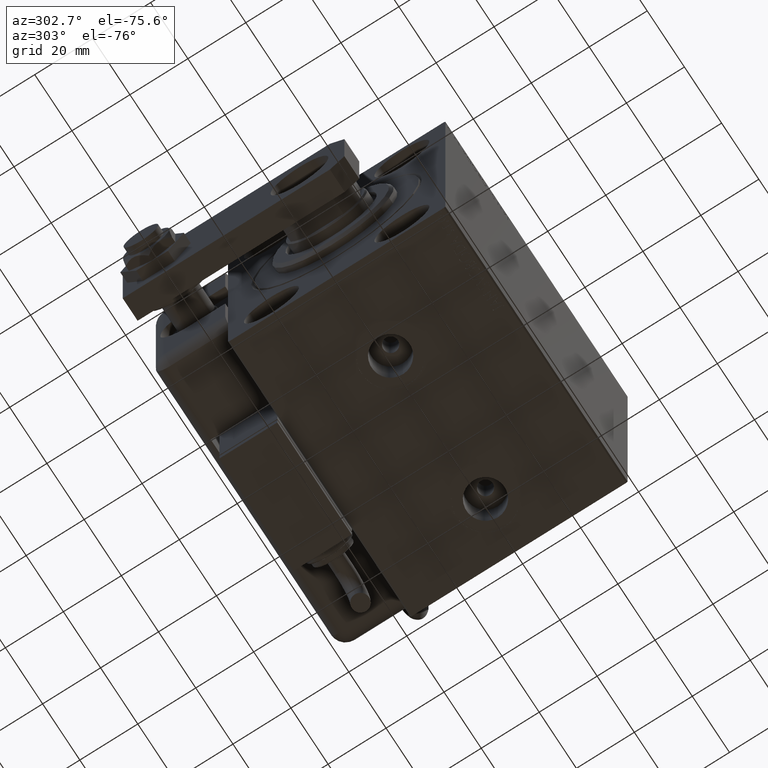
[diagram: clean part render]
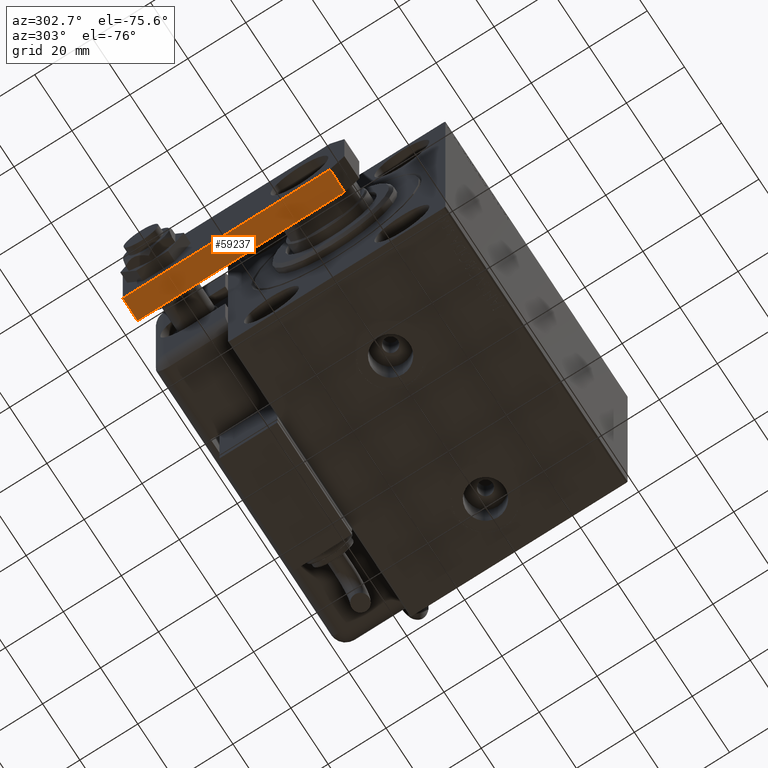
[diagram: same view with one face highlighted and labeled with its STEP entity id]
A machine part, auxiliary view. The second image highlights one B-rep face of the part: STEP entity #59237.
In plain terms, the highlighted planar face has unit normal (0, -0, 1).
Its self-contained STEP definition (entity closure, byte-faithful):
#6174 = EDGE_CURVE ( 'NONE', #54972, #6866, #26038, .T. ) ;
#6866 = VERTEX_POINT ( 'NONE', #21196 ) ;
#7568 = DIRECTION ( 'NONE',  ( -6.802837160693361638E-17, 1.000000000000000000, 0.000000000000000000 ) ) ;
#7772 = FACE_OUTER_BOUND ( 'NONE', #9344, .T. ) ;
#8980 = ORIENTED_EDGE ( 'NONE', *, *, #23380, .F. ) ;
#9344 = EDGE_LOOP ( 'NONE', ( #21934, #56663, #10870, #8980 ) ) ;
#9704 = CARTESIAN_POINT ( 'NONE',  ( 15.00000000000000888, 5.000000000000004441, 8.000000000000000000 ) ) ;
#10504 = DIRECTION ( 'NONE',  ( -0.000000000000000000, -0.000000000000000000, -1.000000000000000000 ) ) ;
#10870 = ORIENTED_EDGE ( 'NONE', *, *, #6174, .T. ) ;
#15678 = EDGE_CURVE ( 'NONE', #20735, #54972, #18786, .T. ) ;
#16178 = DIRECTION ( 'NONE',  ( -6.802837160693361638E-17, 1.000000000000000000, 0.000000000000000000 ) ) ;
#18786 = LINE ( 'NONE', #9704, #50796 ) ;
#20735 = VERTEX_POINT ( 'NONE', #29837 ) ;
#21196 = CARTESIAN_POINT ( 'NONE',  ( 15.00000000000000355, 76.50000000000000000, 0.000000000000000000 ) ) ;
#21712 = DIRECTION ( 'NONE',  ( -1.000000000000000000, -6.802837160693362871E-17, 0.000000000000000000 ) ) ;
#21934 = ORIENTED_EDGE ( 'NONE', *, *, #52612, .F. ) ;
#23380 = EDGE_CURVE ( 'NONE', #44431, #6866, #46817, .T. ) ;
#25019 = AXIS2_PLACEMENT_3D ( 'NONE', #44718, #21712, #35606 ) ;
#26038 = LINE ( 'NONE', #49937, #52449 ) ;
#26238 = PLANE ( 'NONE',  #25019 ) ;
#28756 = DIRECTION ( 'NONE',  ( 0.000000000000000000, 0.000000000000000000, -1.000000000000000000 ) ) ;
#29837 = CARTESIAN_POINT ( 'NONE',  ( 15.00000000000000888, 5.000000000000004441, 8.000000000000000000 ) ) ;
#35576 = VECTOR ( 'NONE', #16178, 1000.000000000000000 ) ;
#35606 = DIRECTION ( 'NONE',  ( 6.802837160693362871E-17, -1.000000000000000000, 0.000000000000000000 ) ) ;
#40073 = CARTESIAN_POINT ( 'NONE',  ( 15.00000000000000888, 9.629649721936179265E-32, 8.000000000000000000 ) ) ;
#43168 = CARTESIAN_POINT ( 'NONE',  ( 15.00000000000000355, 76.50000000000000000, 8.000000000000000000 ) ) ;
#44030 = LINE ( 'NONE', #40073, #35576 ) ;
#44431 = VERTEX_POINT ( 'NONE', #43168 ) ;
#44718 = CARTESIAN_POINT ( 'NONE',  ( 15.00000000000000888, 9.629649721936179265E-32, 8.000000000000000000 ) ) ;
#46817 = LINE ( 'NONE', #51070, #58823 ) ;
#49937 = CARTESIAN_POINT ( 'NONE',  ( 15.00000000000000888, 9.629649721936179265E-32, 0.000000000000000000 ) ) ;
#50244 = CARTESIAN_POINT ( 'NONE',  ( 15.00000000000000888, 5.000000000000004441, 0.000000000000000000 ) ) ;
#50796 = VECTOR ( 'NONE', #28756, 1000.000000000000000 ) ;
#51070 = CARTESIAN_POINT ( 'NONE',  ( 15.00000000000000355, 76.50000000000000000, 8.000000000000000000 ) ) ;
#52449 = VECTOR ( 'NONE', #7568, 1000.000000000000000 ) ;
#52612 = EDGE_CURVE ( 'NONE', #20735, #44431, #44030, .T. ) ;
#54972 = VERTEX_POINT ( 'NONE', #50244 ) ;
#56663 = ORIENTED_EDGE ( 'NONE', *, *, #15678, .T. ) ;
#58823 = VECTOR ( 'NONE', #10504, 1000.000000000000000 ) ;
#59237 = ADVANCED_FACE ( 'NONE', ( #7772 ), #26238, .F. ) ;